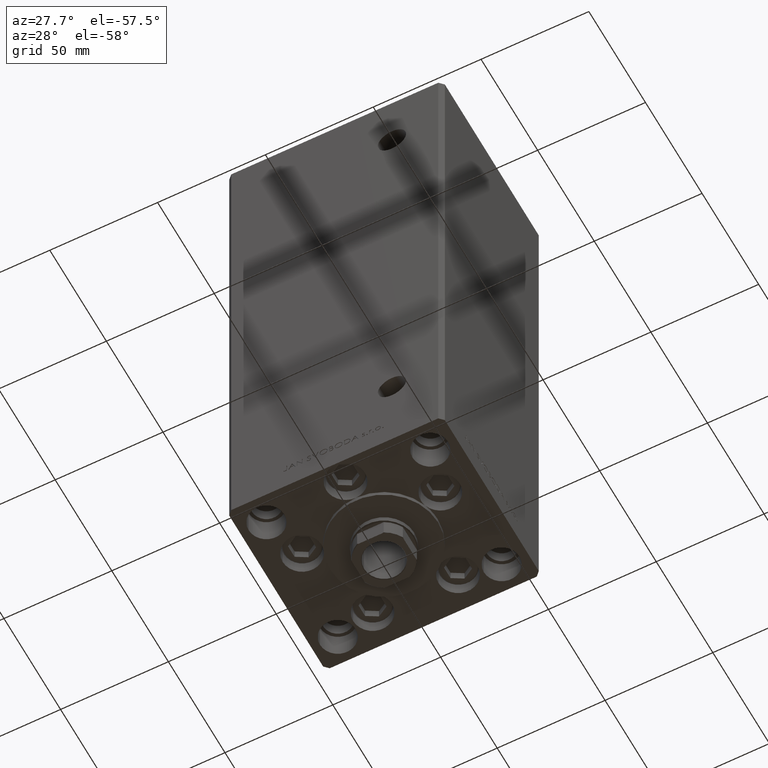
[diagram: clean part render]
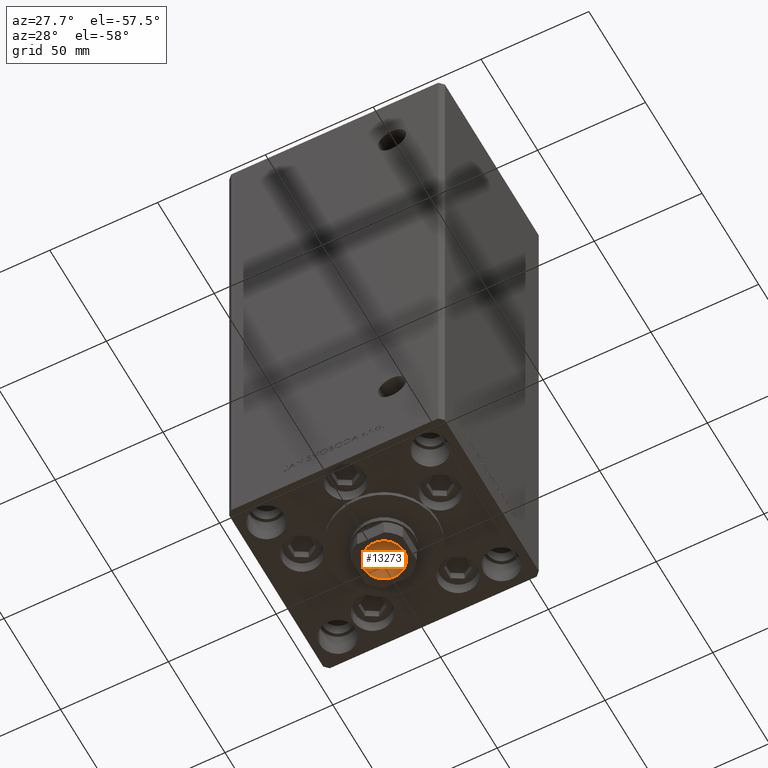
[diagram: same view with one face highlighted and labeled with its STEP entity id]
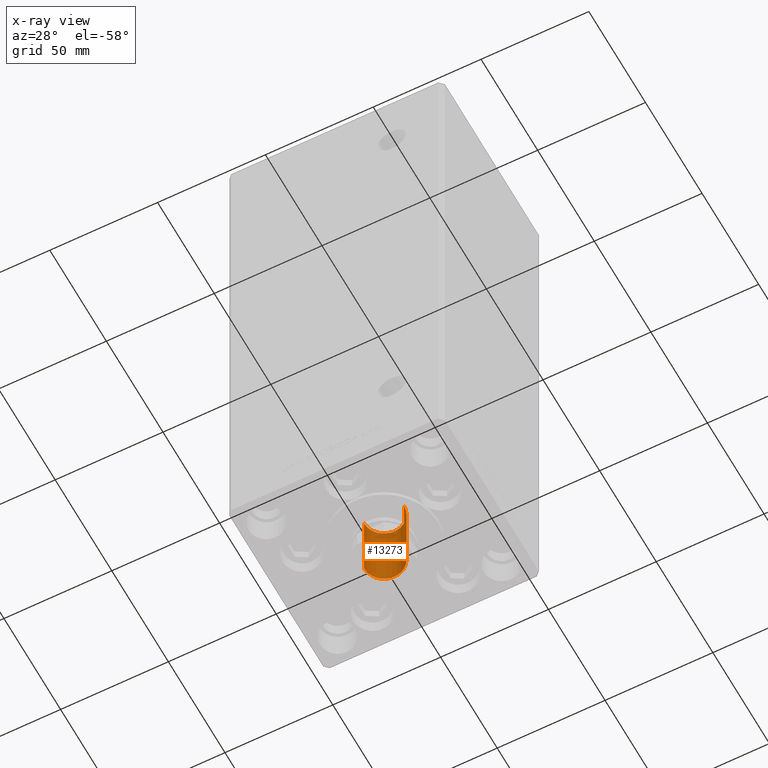
[diagram: x-ray of the same camera — body ghosted, the highlighted face saturated]
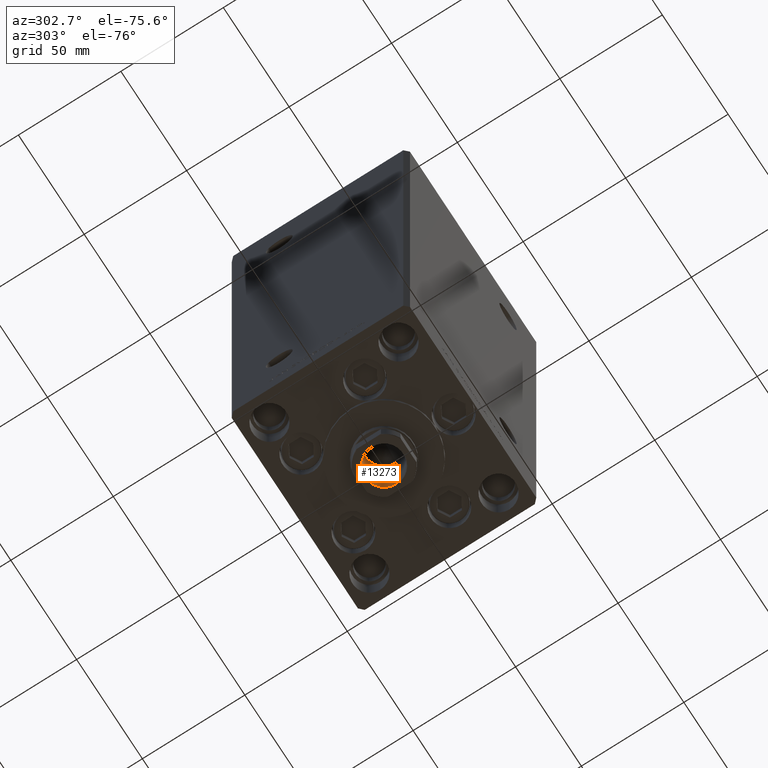
[diagram: same view with one face highlighted and labeled with its STEP entity id]
A machine part, auxiliary view. The second image highlights one B-rep face of the part: STEP entity #13273.
The next image is the same camera in x-ray: the body ghosted, the highlighted face saturated — about 7% of this face is hidden behind the body in this view.
A second angle (auxiliary view) of the same face is appended — the face is thin or edge-on in the first view.
In plain terms, the highlighted cylindrical surface (edge-blend (fillet) strip) has radius 9.25 mm, axis along (0, 0, -1).
Its self-contained STEP definition (entity closure, byte-faithful):
#747 = VECTOR ( 'NONE', #38512, 1000.000000000000000 ) ;
#3007 = LINE ( 'NONE', #26294, #28209 ) ;
#4212 = ORIENTED_EDGE ( 'NONE', *, *, #38374, .F. ) ;
#4904 = CARTESIAN_POINT ( 'NONE',  ( -9.249999999999996447, 1.132798289211301304E-15, 234.9499999999999886 ) ) ;
#5955 = DIRECTION ( 'NONE',  ( -0.000000000000000000, -0.000000000000000000, 1.000000000000000000 ) ) ;
#11165 = LINE ( 'NONE', #49673, #747 ) ;
#11415 = CARTESIAN_POINT ( 'NONE',  ( -9.249999999999994671, 1.132798289211300909E-15, 200.2500000000000000 ) ) ;
#13273 = ADVANCED_FACE ( 'NONE', ( #49018 ), #21404, .F. ) ;
#13300 = DIRECTION ( 'NONE',  ( 0.000000000000000000, 0.000000000000000000, 1.000000000000000000 ) ) ;
#13547 = CARTESIAN_POINT ( 'NONE',  ( 0.000000000000000000, 0.000000000000000000, 234.9499999999999886 ) ) ;
#15626 = EDGE_CURVE ( 'NONE', #22816, #21248, #24342, .T. ) ;
#21248 = VERTEX_POINT ( 'NONE', #4904 ) ;
#21404 = CYLINDRICAL_SURFACE ( 'NONE', #33620, 9.249999999999996447 ) ;
#21454 = ORIENTED_EDGE ( 'NONE', *, *, #15626, .T. ) ;
#21462 = CARTESIAN_POINT ( 'NONE',  ( 0.000000000000000000, 0.000000000000000000, 200.2500000000000000 ) ) ;
#21655 = CIRCLE ( 'NONE', #42805, 9.249999999999994671 ) ;
#22612 = EDGE_LOOP ( 'NONE', ( #40446, #4212, #42791, #21454 ) ) ;
#22816 = VERTEX_POINT ( 'NONE', #34707 ) ;
#23550 = CARTESIAN_POINT ( 'NONE',  ( 9.249999999999994671, 0.000000000000000000, 200.2500000000000000 ) ) ;
#24342 = CIRCLE ( 'NONE', #48585, 9.249999999999996447 ) ;
#24452 = DIRECTION ( 'NONE',  ( 1.000000000000000000, 0.000000000000000000, 0.000000000000000000 ) ) ;
#26294 = CARTESIAN_POINT ( 'NONE',  ( -9.249999999999996447, 1.132798289211301304E-15, 235.2500000000000284 ) ) ;
#28209 = VECTOR ( 'NONE', #41751, 1000.000000000000000 ) ;
#28996 = DIRECTION ( 'NONE',  ( 1.000000000000000000, 0.000000000000000000, 0.000000000000000000 ) ) ;
#32808 = CARTESIAN_POINT ( 'NONE',  ( 0.000000000000000000, 0.000000000000000000, 235.2500000000000284 ) ) ;
#33620 = AXIS2_PLACEMENT_3D ( 'NONE', #32808, #5955, #28996 ) ;
#34707 = CARTESIAN_POINT ( 'NONE',  ( 9.249999999999996447, 0.000000000000000000, 234.9499999999999886 ) ) ;
#36910 = DIRECTION ( 'NONE',  ( -0.000000000000000000, -0.000000000000000000, 1.000000000000000000 ) ) ;
#38374 = EDGE_CURVE ( 'NONE', #47031, #46972, #21655, .T. ) ;
#38512 = DIRECTION ( 'NONE',  ( -0.000000000000000000, -0.000000000000000000, 1.000000000000000000 ) ) ;
#39977 = DIRECTION ( 'NONE',  ( 1.000000000000000000, 0.000000000000000000, 0.000000000000000000 ) ) ;
#40425 = EDGE_CURVE ( 'NONE', #46972, #21248, #3007, .T. ) ;
#40446 = ORIENTED_EDGE ( 'NONE', *, *, #40425, .F. ) ;
#41687 = EDGE_CURVE ( 'NONE', #47031, #22816, #11165, .T. ) ;
#41751 = DIRECTION ( 'NONE',  ( -0.000000000000000000, -0.000000000000000000, 1.000000000000000000 ) ) ;
#42791 = ORIENTED_EDGE ( 'NONE', *, *, #41687, .T. ) ;
#42805 = AXIS2_PLACEMENT_3D ( 'NONE', #21462, #36910, #39977 ) ;
#46972 = VERTEX_POINT ( 'NONE', #11415 ) ;
#47031 = VERTEX_POINT ( 'NONE', #23550 ) ;
#48585 = AXIS2_PLACEMENT_3D ( 'NONE', #13547, #13300, #24452 ) ;
#49018 = FACE_OUTER_BOUND ( 'NONE', #22612, .T. ) ;
#49673 = CARTESIAN_POINT ( 'NONE',  ( 9.249999999999996447, 0.000000000000000000, 235.2500000000000284 ) ) ;